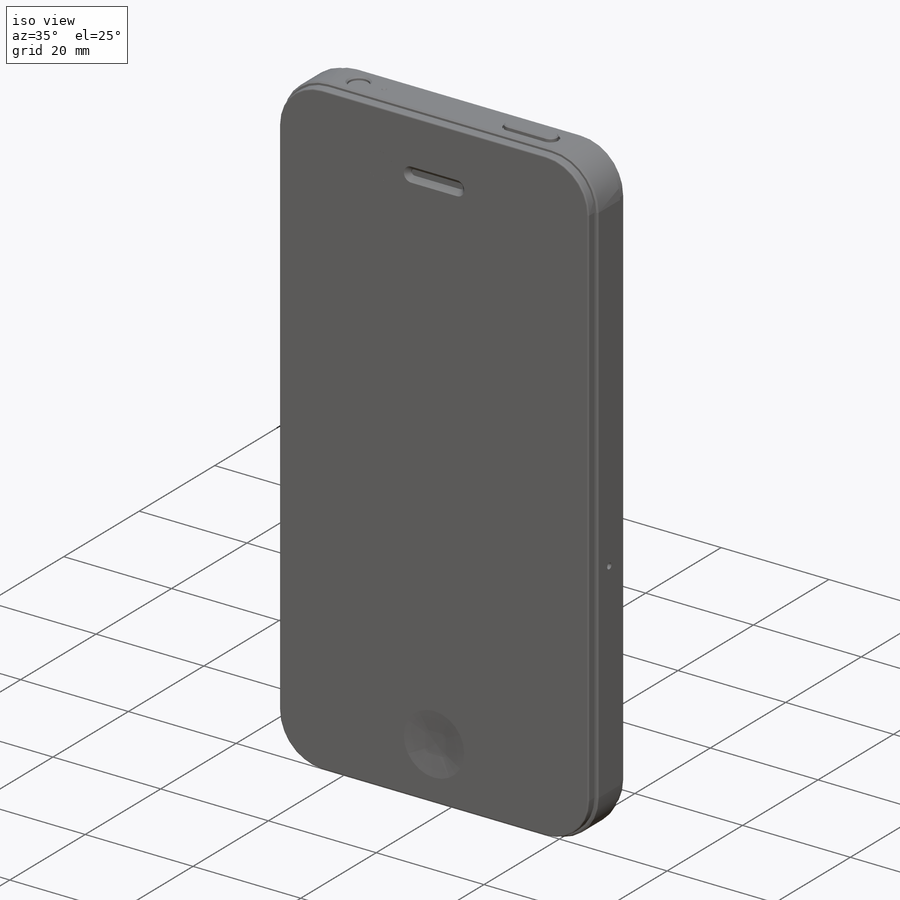
[diagram: iso view]
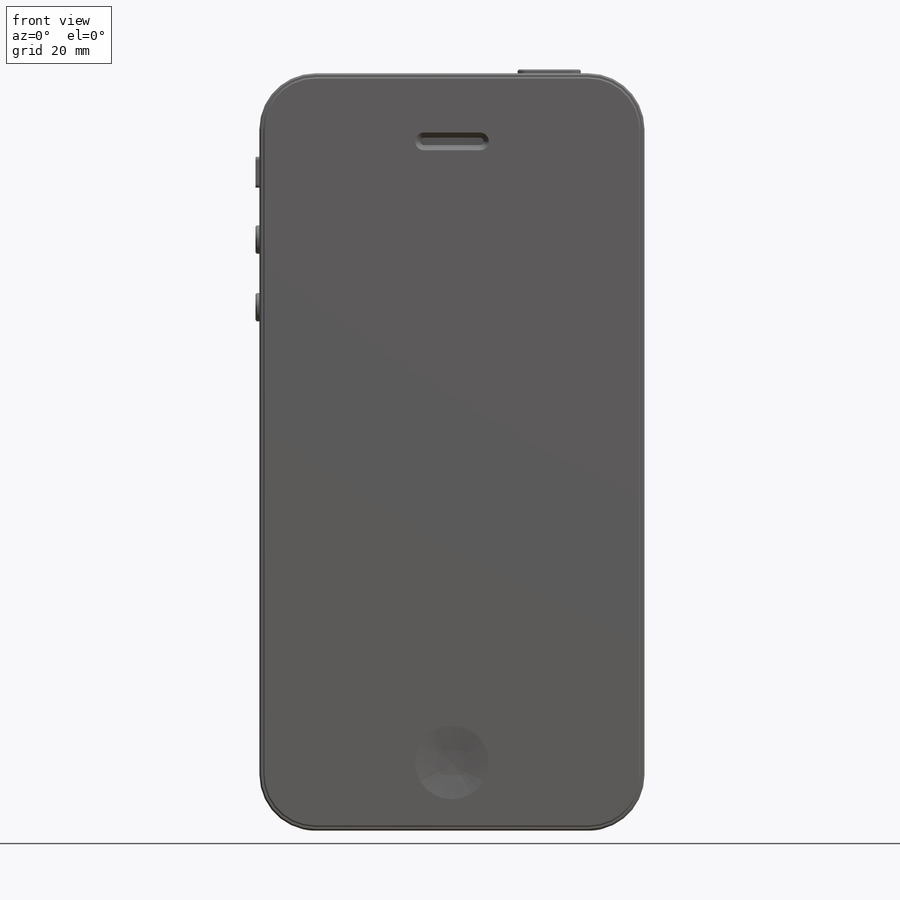
[diagram: front view]
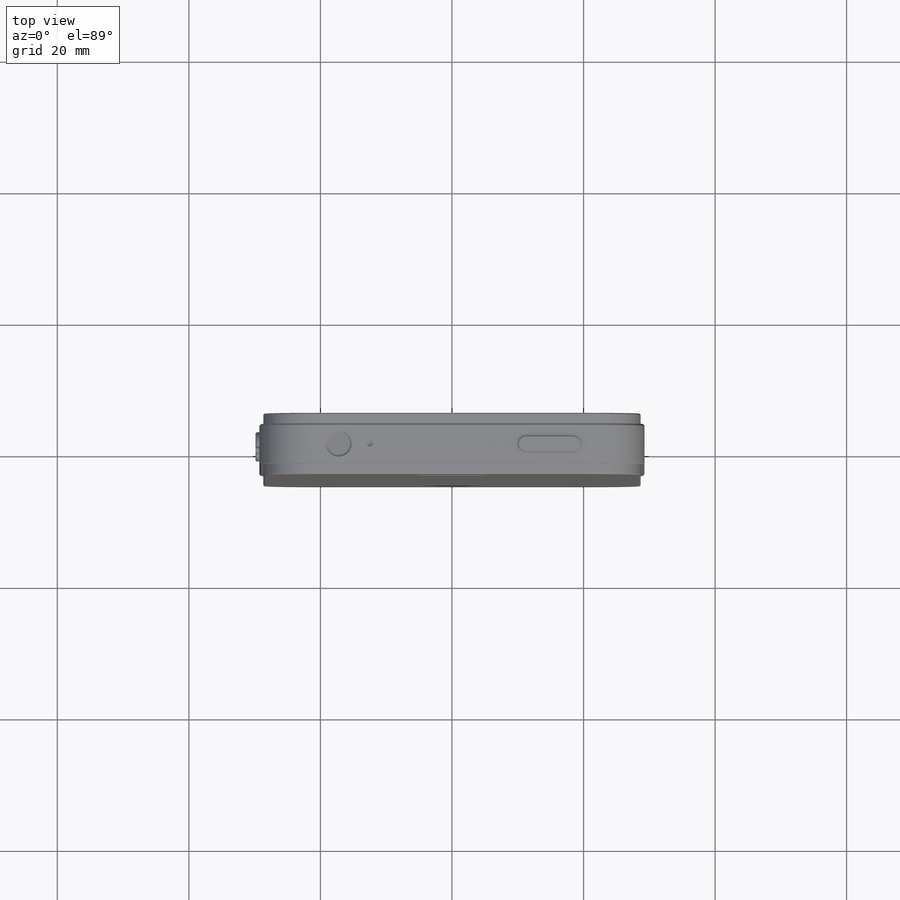
[diagram: top view]
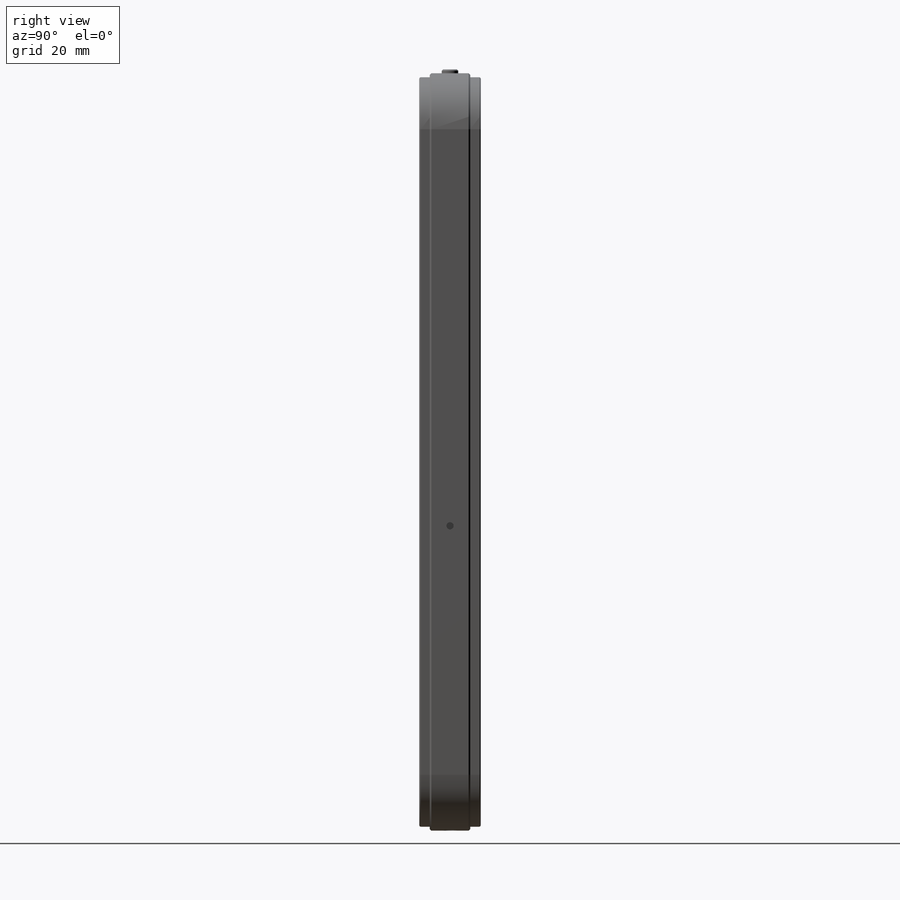
[diagram: right view]
SOLIDWORKS PART (.sldprt)
format: sldprt  version: not decoded by parser v0  size: 1,937,408 bytes
history: native  units: mm
features: sketch x37, fillet x22, extrude x14, chamfer x6, dome x4, material x1 (+22 scaffold rows collapsed; 9 parser-record rows omitted)
feature tree (115):
  scaffold x22  (default folders/planes/origin — collapsed)
  material  "Material <not specified>"
  parser-record x9  (decoder bookkeeping rows leaked as tree rows — omitted from the tree; the rows remain in map.json)
  sketch  "Sketch1"  dims[c1.D3=8.5mm c1.D1=58.55mm c1.D2=115.15mm c2.D1=6.17mm c2.D5=0.6mm c2.D6=1.0mm c2.D7=5.0mm]
  chamfer  "METAL BAND CHAMFER"  Distance=0.25mm Angle=45deg
  sketch  "Sketch3"  dims[D1=0.85mm D2=13.0mm]
  sketch  "Sketch5"
  extrude  "GORILLA GLASS"  Depth=9.34mm
  fillet  "GORILLA GLASS FILLET"  Radius=0.25mm
  sketch  "Sketch9"  dims[D2=11.2mm D1=104.79mm]
  extrude  "HOME BUTTON SPLIT"  [1 undecoded]
  dome  "HOME BUTTON DOME"
  sketch  "Sketch10"  dims[D2=0.65mm D1=3.85mm D3=0.4mm]
  extrude  "HOME BUTTON LABEL SPLIT"  [1 undecoded]
  sketch  "Sketch11"  dims[D1=1.15mm D2=9.65mm D3=10.35mm]
  fillet  "VOICE SPEAKER"  Radius=1mm
  chamfer  "VOICE SPEAKER CHAMFER"  Distance=0.775mm
  sketch  "Sketch38"  dims[D1=4.8mm D2=19.27mm]
  fillet  "FRONT CAMERA CUT"  Radius=1mm
  sketch  "Sketch39"
  fillet  "FRONT CAMERA COVER PIECE"  Radius=0.25mm
  sketch  "Sketch50"  dims[D1=0.2mm]
  extrude  "FRONT LENS SPLIT"  [1 undecoded]
  dome  "FRONT LENS"
  sketch  "Sketch51"
  fillet  "GLASS COVER"  Radius=0.4mm
  sketch  "Sketch16"  dims[c1.D1=3.0mm c1.D2=9.44mm c1.D3=19.54mm c2.D2=9.44mm c2.D3=19.54mm]
  fillet  "SLEEP BUTTON CUT"  Radius=0.5mm
  sketch  "Sketch17"  dims[D1=2.5mm]
  fillet  "SLEEP BUTTON EXTRUDE"  Radius=0.6mm
  chamfer  "SLEEP BUTTON CHAMFER"  Distance=0.2mm Angle=45deg
  sketch  "Sketch21"  dims[c1.D6=4.8mm c1.D7=0.5mm c1.D1=3.0mm c1.D2=5.0mm c1.D3=12.53mm c1.D4=25.28mm c1.D5=35.56mm c2.D3=12.53mm c2.D4=25.28mm c2.D5=35.56mm c3.D3=12.53mm c3.D4=25.28mm c3.D5=35.56mm c4.D3=12.53mm c4.D4=25.28mm c4.D5=35.56mm c5.D3=11.93mm c5.D4=24.68mm c5.D5=34.96mm c6.D3=12.53mm c6.D4=25.28mm c6.D5=35.56mm]
  fillet  "SIDE BUTTONS CUT"  Radius=0.5mm
  sketch  "Sketch22"  dims[D1=4.3mm D2=1.0mm D3=3.7mm D4=0.75mm]
  fillet  "SIDE BUTTONS EXTRUDE"  Radius=0.6mm
  chamfer  "SIDE BUTTON CHAMFER"  Distance=0.2mm Angle=45deg
  sketch  "Sketch23"  dims[c1.D2=0.25mm c1.D1=2.75mm c2.D2=1.375mm]
  fillet  "VOLUME BUTTON DETAILS"  Radius=0.2mm
  sketch  "Sketch18"  dims[c1.D1=0.35mm c1.D3=3.5mm c1.D2=41.77mm c1.D4=46.51mm c2.D2=41.77mm c2.D4=46.51mm]
  fillet  "HEADPHONE JACK CUT"  Radius=15mm
  chamfer  "HEADPHONE JACK CHAMFER"  Distance=0.275mm Angle=45deg
  sketch  "Sketch19"  dims[D2=0.125mm D1=0.125mm]
  extrude  "HEADPHONE JACK RIM DETAIL"  [1 undecoded]
  sketch  "Sketch40"  dims[D1=6.92mm D5=3.0mm D2=8.77mm D3=8.77mm D4=0.75mm]
  extrude  "CAMERA RING"  [1 undecoded]
  sketch  "Sketch41"  dims[D1=0.0mm]
  fillet  "CAMERA CUT 1"  Radius=0.25mm
  sketch  "Sketch42"  dims[D1=3.75mm]
  fillet  "CAMERA CUT 2"  Radius=1mm
  sketch  "Sketch43"  dims[D1=2.25mm]
  fillet  "CAMERA CUT 3"  Radius=0.5mm
  sketch  "Sketch44"  dims[D1=0.25mm]
  extrude  "LENS SPLIT"  [1 undecoded]
  dome  "LENS"
  sketch  "Sketch45"  dims[D1=0.0mm]
  fillet  "CAMERA GLASS COVER"  [1 undecoded]
  sketch  "Sketch46"  dims[c1.D1=3.0mm c1.D3=~1.89581mm c1.D2=14.93mm c2.D3=0.75mm]
  extrude  "FLASH RING"  [1 undecoded]
  sketch  "Sketch47"  dims[D1=0.0mm]
  fillet  "FLASH CUT"  Radius=0.5mm
  dome  "FLASH DIODE"
  sketch  "Sketch48"
  fillet  "FLASH COVER"  Radius=0.1mm
  sketch  "Sketch20"  dims[c1.D1=7.29mm c1.D2=14.26mm c1.D3=2.3mm c1.D4=4.67mm c2.D1=7.29mm]
  fillet  "SPEAKERS"  Radius=1mm
  sketch  "Sketch24"  dims[D1=0.325mm D2=3.0mm D3=1.5mm]
  extrude  "VIBRATE RED INDICATOR"  [1 undecoded]
  sketch  "Sketch25"  dims[D5=0.25mm D1=3.14mm D2=6.2mm D3=18.27mm D4=40.28mm]
  fillet  "30 PIN CONN SLOT"  Radius=2.5mm
  chamfer  "30 PIN CONN CHAMFER"  Distance=0.15mm Angle=45deg
  sketch  "Sketch26"  dims[D4=2.0mm D1=4.67mm D2=16.25mm D3=42.3mm]
  extrude  "SCREWS"  [1 undecoded]
  sketch  "Sketch27"  dims[D1=0.8mm]
  fillet  "SCREW HEADS"  Radius=0.5mm
  sketch  "Sketch52"  dims[D1=15.5mm D2=0.65mm D3=0.5mm]
  fillet  "DOCK CONNECTOR"  Radius=1.5mm
  sketch  "Sketch53"  dims[D1=0.4mm D2=1.0mm D4=0.5mm D3=30.0]
  extrude  "CONTACTS"  [1 undecoded]
  sketch  "Sketch54"  dims[D1=2.3mm D2=17.97mm D3=52.01mm]
  extrude  "SIM CARD SPLIT"  [1 undecoded]
  sketch  "Sketch55"  dims[D1=1.1mm]
  fillet  "SIM CARD HOLE"  Radius=1.79mm
  sketch  "Sketch56"  dims[c1.D3=0.5mm c1.D1=74.88mm c1.D2=49.92mm c2.D3=20.13mm]
  extrude  "SCREEN"  [1 undecoded]
  sketch  "Sketch57"  dims[D1=20.0mm]
  extrude  "APPLE LOGO"  [1 undecoded]
decode coverage: 61 of 83 modeling features carry decoded parameters
note: ~ marks probable driven/reference dimensions
note: 14 parameter values undecoded
summary: no parameter record found for 14 features
note: suppression state not decoded; provenance and decode notes live in map.json
